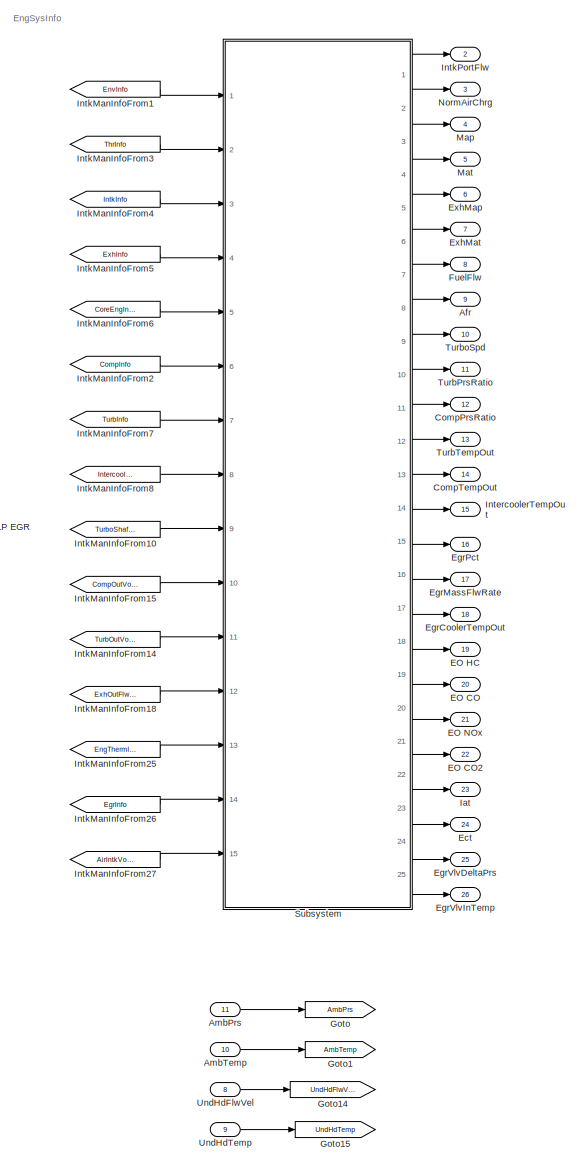
[diagram: root canvas - part 1/3, right side, full height]
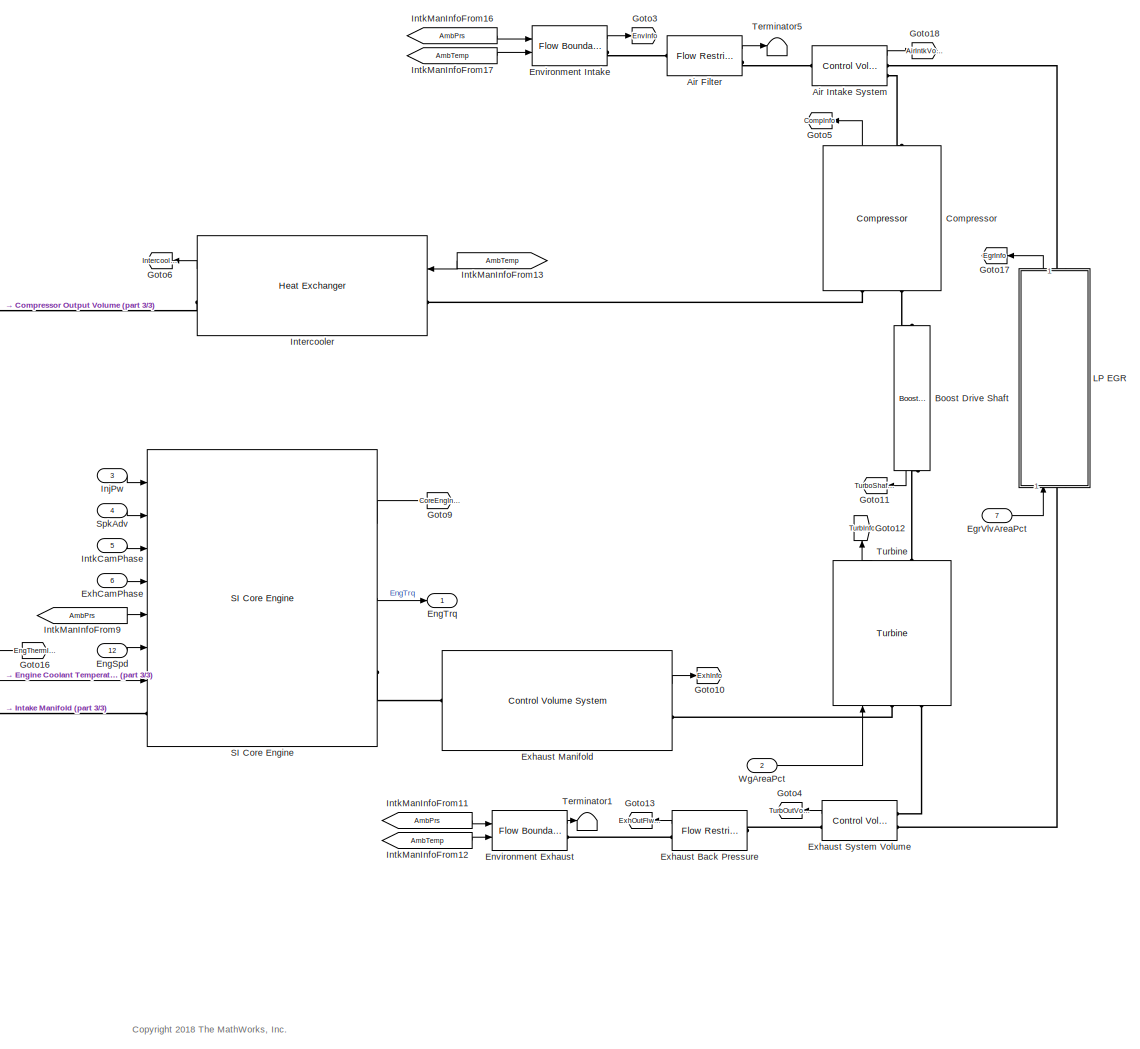
[diagram: root canvas - part 2/3, center side, full height]
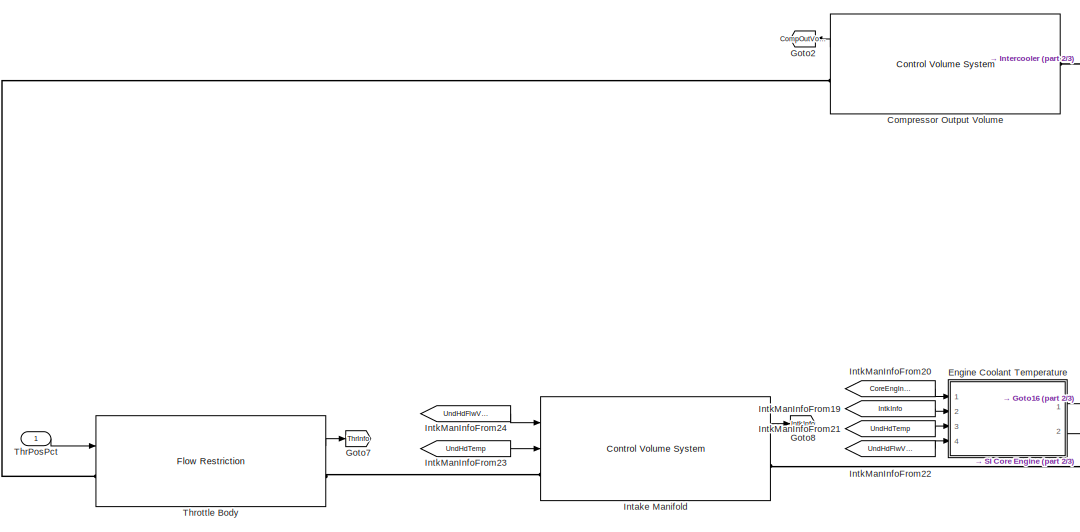
[diagram: root canvas - part 3/3, middle left region]
MODEL slx_4086c06a2117
KIND model
CONFIG AbsTol = auto
CONFIG EnableMultiTasking = on
CONFIG MaxStep = auto
CONFIG MinStep = auto
CONFIG RelTol = 1e-3
CONFIG SampleTimeConstraint = Unconstrained
CONFIG Solver = VariableStepAuto
CONFIG SolverName = VariableStepAuto
CONFIG StartTime = 0.0
CONFIG StopTime = inf
WORKSPACE source: MAT-file member
WORKSPACE AirFilterArea = 0.000962112750162
BLOCK [Outport] Afr
  IconDisplay = Port number
  Port = 9
BLOCK [Reference] Air Filter  REF=autolibfundflw/Flow Restriction
  Ports = [0, 1, 0, 0, 0, 1, 1]
  SourceBlock = autolibfundflw/Flow Restriction
  SourceProductBaseCode = PW
  SourceProductName = Powertrain Blockset
  SourceType = Flow Restriction
BLOCK [Reference] Air Intake System  REF=autolibfundflw/Control Volume System
  Ports = [0, 1, 0, 0, 0, 1, 2]
  SourceBlock = autolibfundflw/Control Volume System
  SourceProductBaseCode = PW
  SourceProductName = Powertrain Blockset
  SourceType = Control Volume System
BLOCK [Inport] AmbPrs
  IconDisplay = Port number
  Port = 11
BLOCK [Inport] AmbTemp
  IconDisplay = Port number
  Port = 10
BLOCK [Reference] Boost Drive Shaft  REF=autolibboost/Boost Drive Shaft
  Ports = [0, 1, 0, 0, 0, 1, 1]
  SourceBlock = autolibboost/Boost Drive Shaft
  SourceProductBaseCode = PW
  SourceProductName = Powertrain Blockset
  SourceType = Boost Drive Shaft
BLOCK [Outport] CompPrsRatio
  IconDisplay = Port number
  Port = 12
BLOCK [Outport] CompTempOut
  IconDisplay = Port number
  Port = 14
BLOCK [Reference] Compressor  REF=autolibboost/Compressor
  Ports = [0, 1, 0, 0, 0, 2, 1]
  SourceBlock = autolibboost/Compressor
  SourceProductBaseCode = PW
  SourceProductName = Powertrain Blockset
  SourceType = Compressor
BLOCK [Reference] Compressor Output Volume  REF=autolibfundflw/Control Volume System
  Ports = [0, 1, 0, 0, 0, 1, 1]
  SourceBlock = autolibfundflw/Control Volume System
  SourceProductBaseCode = PW
  SourceProductName = Powertrain Blockset
  SourceType = Control Volume System
BLOCK [Outport] EO CO
  IconDisplay = Port number
  Port = 20
BLOCK [Outport] EO CO2
  IconDisplay = Port number
  Port = 22
BLOCK [Outport] EO HC
  IconDisplay = Port number
  Port = 19
BLOCK [Outport] EO NOx
  IconDisplay = Port number
  Port = 21
BLOCK [Outport] Ect
  IconDisplay = Port number
  Port = 24
BLOCK [Outport] EgrCoolerTempOut
  IconDisplay = Port number
  Port = 18
BLOCK [Outport] EgrMassFlwRate
  IconDisplay = Port number
  Port = 17
BLOCK [Outport] EgrPct
  IconDisplay = Port number
  Port = 16
BLOCK [Inport] EgrVlvAreaPct
  IconDisplay = Port number
  Port = 7
BLOCK [Outport] EgrVlvDeltaPrs
  IconDisplay = Port number
  Port = 25
BLOCK [Outport] EgrVlvInTemp
  IconDisplay = Port number
  Port = 26
BLOCK [Inport] EngSpd
  IconDisplay = Port number
  Port = 12
BLOCK [Outport] EngTrq
  IconDisplay = Port number
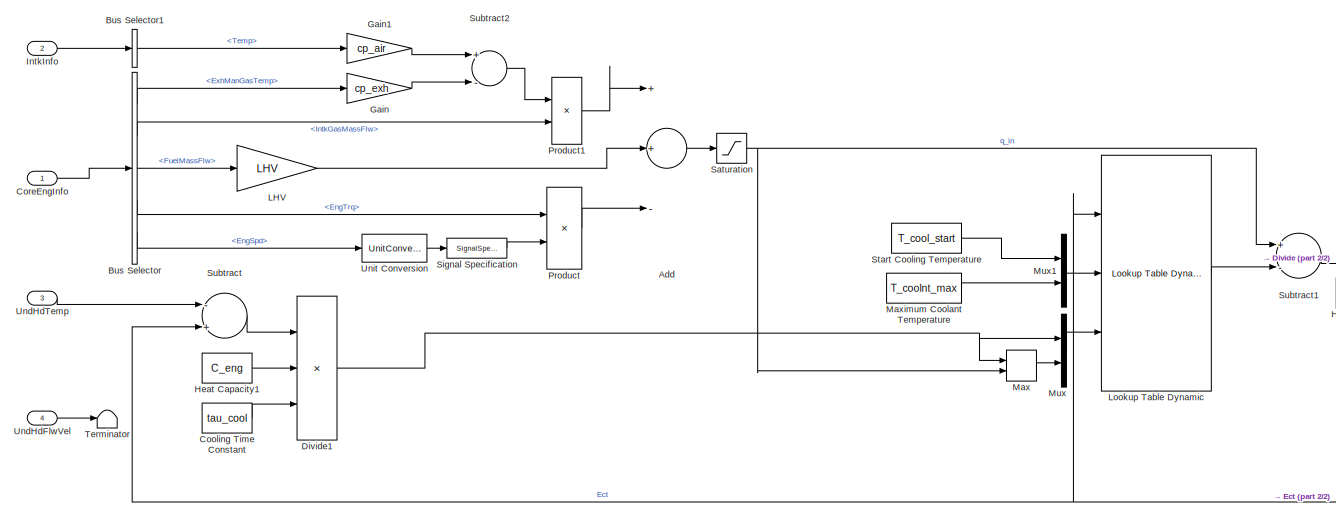
[diagram: Engine Coolant Temperature - part 1/2, center side, full height]
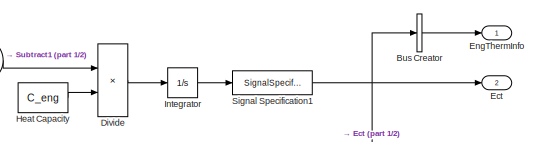
[diagram: Engine Coolant Temperature - part 2/2, middle right region]
BLOCK [SubSystem] Engine Coolant Temperature
  Ports = [4, 2]
  RequestExecContextInheritance = off
BLOCK [Sum] Engine Coolant Temperature/Add
  InputSameDT = off
  Inputs = ++-
  OutDataTypeStr = Inherit: Inherit via internal rule
  Ports = [3, 1]
  SaturateOnIntegerOverflow = off
BLOCK [BusCreator] Engine Coolant Temperature/Bus Creator
  DisplayOption = bar
  InheritFromInputs = on
  Inputs = 1
  Ports = [1, 1]
BLOCK [BusSelector] Engine Coolant Temperature/Bus Selector
  OutputAsBus = off
  OutputSignals = ExhManGasTemp,IntkGasMassFlw,FuelMassFlw,EngTrq,EngSpd
  Ports = [1, 5]
BLOCK [BusSelector] Engine Coolant Temperature/Bus Selector1
  OutputAsBus = off
  OutputSignals = Vol.Temp
  Ports = [1, 1]
BLOCK [Constant] Engine Coolant Temperature/Cooling Time Constant
  Value = tau_cool
BLOCK [Inport] Engine Coolant Temperature/CoreEngInfo
  IconDisplay = Port number
BLOCK [Product] Engine Coolant Temperature/Divide
  InputSameDT = off
  Inputs = */
  OutDataTypeStr = Inherit: Inherit via internal rule
  Ports = [2, 1]
  RndMeth = Floor
  SaturateOnIntegerOverflow = off
BLOCK [Product] Engine Coolant Temperature/Divide1
  InputSameDT = off
  Inputs = **/
  OutDataTypeStr = Inherit: Inherit via internal rule
  Ports = [3, 1]
  RndMeth = Floor
  SaturateOnIntegerOverflow = off
BLOCK [Outport] Engine Coolant Temperature/Ect
  IconDisplay = Port number
  Port = 2
  Unit = K
BLOCK [Outport] Engine Coolant Temperature/EngThermInfo
  IconDisplay = Port number
  Unit = K
BLOCK [Gain] Engine Coolant Temperature/Gain
  Gain = cp_exh
  OutDataTypeStr = Inherit: Inherit via internal rule
  ParamDataTypeStr = Inherit: Inherit via internal rule
  SaturateOnIntegerOverflow = off
BLOCK [Gain] Engine Coolant Temperature/Gain1
  Gain = cp_air
  OutDataTypeStr = Inherit: Inherit via internal rule
  ParamDataTypeStr = Inherit: Inherit via internal rule
  SaturateOnIntegerOverflow = off
BLOCK [Constant] Engine Coolant Temperature/Heat Capacity
  Value = C_eng
BLOCK [Constant] Engine Coolant Temperature/Heat Capacity1
  Value = C_eng
BLOCK [Integrator] Engine Coolant Temperature/Integrator
  InitialCondition = T_coolnt_init
  LimitOutput = on
  LowerSaturationLimit = 0
  Ports = [1, 1]
  UpperSaturationLimit = T_coolnt_max
  ZeroCross = off
BLOCK [Inport] Engine Coolant Temperature/IntkInfo
  IconDisplay = Port number
  Port = 2
BLOCK [Gain] Engine Coolant Temperature/LHV
  Gain = LHV
  OutDataTypeStr = Inherit: Inherit via internal rule
  ParamDataTypeStr = Inherit: Inherit via internal rule
  SaturateOnIntegerOverflow = off
BLOCK [Reference] Engine Coolant Temperature/Lookup Table Dynamic  REF=simulink/Lookup
Tables/Lookup
Table
Dynamic
  Ports = [3, 1]
  SourceBlock = simulink/Lookup\nTables/Lookup\nTable\nDynamic
  SourceProductBaseCode = SL
  SourceProductName = Simulink
  SourceType = Lookup Table Dynamic
BLOCK [MinMax] Engine Coolant Temperature/Max
  Function = max
  InputSameDT = off
  Inputs = 2
  Ports = [2, 1]
  SaturateOnIntegerOverflow = off
  ZeroCross = off
BLOCK [Constant] Engine Coolant Temperature/Maximum Coolant Temperature
  Value = T_coolnt_max
BLOCK [Mux] Engine Coolant Temperature/Mux
  DisplayOption = bar
  Inputs = 2
  Ports = [2, 1]
BLOCK [Mux] Engine Coolant Temperature/Mux1
  DisplayOption = bar
  Inputs = 2
  Ports = [2, 1]
BLOCK [Product] Engine Coolant Temperature/Product
  InputSameDT = off
  OutDataTypeStr = Inherit: Inherit via internal rule
  Ports = [2, 1]
  RndMeth = Floor
  SaturateOnIntegerOverflow = off
BLOCK [Product] Engine Coolant Temperature/Product1
  InputSameDT = off
  OutDataTypeStr = Inherit: Inherit via internal rule
  Ports = [2, 1]
  RndMeth = Floor
  SaturateOnIntegerOverflow = off
BLOCK [Saturate] Engine Coolant Temperature/Saturation
  InputPortMap = u0
  LowerLimit = 0
  Ports = [1, 1]
  UpperLimit = Inf
BLOCK [SignalSpecification] Engine Coolant Temperature/Signal Specification
  Unit = rad/s
BLOCK [SignalSpecification] Engine Coolant Temperature/Signal Specification1
  Unit = K
BLOCK [Constant] Engine Coolant Temperature/Start Cooling Temperature
  Value = T_cool_start
BLOCK [Sum] Engine Coolant Temperature/Subtract
  InputSameDT = off
  Inputs = -+
  OutDataTypeStr = Inherit: Inherit via internal rule
  Ports = [2, 1]
  SaturateOnIntegerOverflow = off
BLOCK [Sum] Engine Coolant Temperature/Subtract1
  InputSameDT = off
  Inputs = +-
  OutDataTypeStr = Inherit: Inherit via internal rule
  Ports = [2, 1]
  SaturateOnIntegerOverflow = off
BLOCK [Sum] Engine Coolant Temperature/Subtract2
  InputSameDT = off
  Inputs = +-
  OutDataTypeStr = Inherit: Inherit via internal rule
  Ports = [2, 1]
  SaturateOnIntegerOverflow = off
BLOCK [Terminator] Engine Coolant Temperature/Terminator
BLOCK [Inport] Engine Coolant Temperature/UndHdFlwVel
  IconDisplay = Port number
  Port = 4
BLOCK [Inport] Engine Coolant Temperature/UndHdTemp
  IconDisplay = Port number
  Port = 3
BLOCK [UnitConversion] Engine Coolant Temperature/Unit Conversion
BLOCK [Reference] Environment Exhaust  REF=autolibfundflw/Flow Boundary
  Ports = [2, 1, 0, 0, 0, 0, 1]
  SourceBlock = autolibfundflw/Flow Boundary
  SourceProductBaseCode = PW
  SourceProductName = Powertrain Blockset
  SourceType = Flow Boundary
BLOCK [Reference] Environment Intake  REF=autolibfundflw/Flow Boundary
  Ports = [2, 1, 0, 0, 0, 0, 1]
  SourceBlock = autolibfundflw/Flow Boundary
  SourceProductBaseCode = PW
  SourceProductName = Powertrain Blockset
  SourceType = Flow Boundary
BLOCK [Inport] ExhCamPhase
  IconDisplay = Port number
  Port = 6
BLOCK [Outport] ExhMap
  IconDisplay = Port number
  Port = 6
BLOCK [Outport] ExhMat
  IconDisplay = Port number
  Port = 7
BLOCK [Reference] Exhaust Back Pressure  REF=autolibfundflw/Flow Restriction
  Ports = [0, 1, 0, 0, 0, 1, 1]
  SourceBlock = autolibfundflw/Flow Restriction
  SourceProductBaseCode = PW
  SourceProductName = Powertrain Blockset
  SourceType = Flow Restriction
BLOCK [Reference] Exhaust Manifold  REF=autolibfundflw/Control Volume System
  Ports = [0, 1, 0, 0, 0, 1, 1]
  SourceBlock = autolibfundflw/Control Volume System
  SourceProductBaseCode = PW
  SourceProductName = Powertrain Blockset
  SourceType = Control Volume System
BLOCK [Reference] Exhaust System Volume  REF=autolibfundflw/Control Volume System
  Ports = [0, 1, 0, 0, 0, 2, 1]
  SourceBlock = autolibfundflw/Control Volume System
  SourceProductBaseCode = PW
  SourceProductName = Powertrain Blockset
  SourceType = Control Volume System
BLOCK [Outport] FuelFlw
  IconDisplay = Port number
  Port = 8
BLOCK [Goto] Goto
  GotoTag = AmbPrs
BLOCK [Goto] Goto1
  GotoTag = AmbTemp
BLOCK [Goto] Goto10
  GotoTag = ExhInfo
BLOCK [Goto] Goto11
  GotoTag = TurboShaftInfo
BLOCK [Goto] Goto12
  GotoTag = TurbInfo
BLOCK [Goto] Goto13
  GotoTag = ExhOutFlwInfo
BLOCK [Goto] Goto14
  GotoTag = UndHdFlwVel
BLOCK [Goto] Goto15
  GotoTag = UndHdTemp
BLOCK [Goto] Goto16
  GotoTag = EngThermInfo
BLOCK [Goto] Goto17
  GotoTag = EgrInfo
BLOCK [Goto] Goto18
  GotoTag = AirIntkVolInfo
BLOCK [Goto] Goto2
  GotoTag = CompOutVolInfo
BLOCK [Goto] Goto3
  GotoTag = EnvInfo
BLOCK [Goto] Goto4
  GotoTag = TurbOutVolInfo
BLOCK [Goto] Goto5
  GotoTag = CompInfo
BLOCK [Goto] Goto6
  GotoTag = IntercoolerInfo
BLOCK [Goto] Goto7
  GotoTag = ThrInfo
BLOCK [Goto] Goto8
  GotoTag = IntkInfo
BLOCK [Goto] Goto9
  GotoTag = CoreEngInfo
BLOCK [Outport] Iat
  IconDisplay = Port number
  Port = 23
BLOCK [Inport] InjPw
  IconDisplay = Port number
  Port = 3
BLOCK [Reference] Intake Manifold  REF=autolibfundflw/Control Volume System
  Ports = [2, 1, 0, 0, 0, 1, 1]
  SourceBlock = autolibfundflw/Control Volume System
  SourceProductBaseCode = PW
  SourceProductName = Powertrain Blockset
  SourceType = Control Volume System
BLOCK [Reference] Intercooler  REF=autolibfundflw/Heat Exchanger
  Ports = [1, 1, 0, 0, 0, 1, 1]
  SourceBlock = autolibfundflw/Heat Exchanger
  SourceProductBaseCode = PW
  SourceProductName = Powertrain Blockset
  SourceType = Heat Exchanger
BLOCK [Outport] IntercoolerTempOut
  IconDisplay = Port number
  Port = 15
BLOCK [Inport] IntkCamPhase
  IconDisplay = Port number
  Port = 5
BLOCK [From] IntkManInfoFrom1
  GotoTag = EnvInfo
BLOCK [From] IntkManInfoFrom10
  GotoTag = TurboShaftInfo
BLOCK [From] IntkManInfoFrom11
  GotoTag = AmbPrs
BLOCK [From] IntkManInfoFrom12
  GotoTag = AmbTemp
BLOCK [From] IntkManInfoFrom13
  GotoTag = AmbTemp
BLOCK [From] IntkManInfoFrom14
  GotoTag = TurbOutVolInfo
BLOCK [From] IntkManInfoFrom15
  GotoTag = CompOutVolInfo
BLOCK [From] IntkManInfoFrom16
  GotoTag = AmbPrs
BLOCK [From] IntkManInfoFrom17
  GotoTag = AmbTemp
BLOCK [From] IntkManInfoFrom18
  GotoTag = ExhOutFlwInfo
BLOCK [From] IntkManInfoFrom19
  GotoTag = IntkInfo
BLOCK [From] IntkManInfoFrom2
  GotoTag = CompInfo
BLOCK [From] IntkManInfoFrom20
  GotoTag = CoreEngInfo
BLOCK [From] IntkManInfoFrom21
  GotoTag = UndHdTemp
BLOCK [From] IntkManInfoFrom22
  GotoTag = UndHdFlwVel
BLOCK [From] IntkManInfoFrom23
  GotoTag = UndHdTemp
BLOCK [From] IntkManInfoFrom24
  GotoTag = UndHdFlwVel
BLOCK [From] IntkManInfoFrom25
  GotoTag = EngThermInfo
BLOCK [From] IntkManInfoFrom26
  GotoTag = EgrInfo
BLOCK [From] IntkManInfoFrom27
  GotoTag = AirIntkVolInfo
BLOCK [From] IntkManInfoFrom3
  GotoTag = ThrInfo
BLOCK [From] IntkManInfoFrom4
  GotoTag = IntkInfo
BLOCK [From] IntkManInfoFrom5
  GotoTag = ExhInfo
BLOCK [From] IntkManInfoFrom6
  GotoTag = CoreEngInfo
BLOCK [From] IntkManInfoFrom7
  GotoTag = TurbInfo
BLOCK [From] IntkManInfoFrom8
  GotoTag = IntercoolerInfo
BLOCK [From] IntkManInfoFrom9
  GotoTag = AmbPrs
BLOCK [Outport] IntkPortFlw
  IconDisplay = Port number
  Port = 2
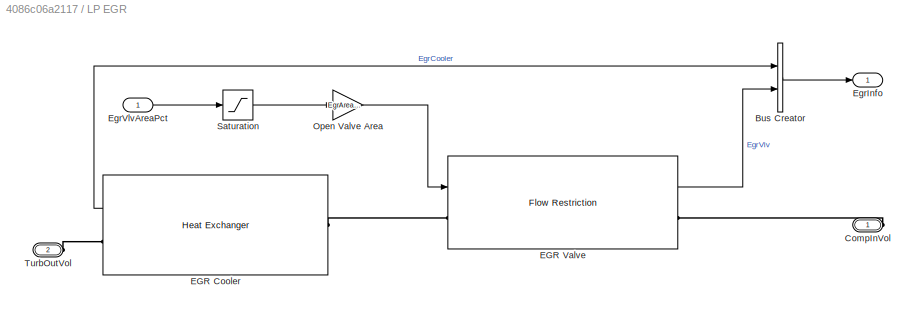
BLOCK [SubSystem] LP EGR
  Ports = [1, 1, 0, 0, 0, 1, 1]
  RequestExecContextInheritance = off
BLOCK [BusCreator] LP EGR/Bus Creator
  DisplayOption = bar
  InheritFromInputs = on
  Inputs = 2
  Ports = [2, 1]
BLOCK [PMIOPort] LP EGR/CompInVol
  Side = Right
BLOCK [Reference] LP EGR/EGR Cooler  REF=autolibfundflw/Heat Exchanger
  Ports = [0, 1, 0, 0, 0, 1, 1]
  SourceBlock = autolibfundflw/Heat Exchanger
  SourceProductBaseCode = PW
  SourceProductName = Powertrain Blockset
  SourceType = Heat Exchanger
BLOCK [Reference] LP EGR/EGR Valve  REF=autolibfundflw/Flow Restriction
  Ports = [1, 1, 0, 0, 0, 1, 1]
  SourceBlock = autolibfundflw/Flow Restriction
  SourceProductBaseCode = PW
  SourceProductName = Powertrain Blockset
  SourceType = Flow Restriction
BLOCK [Outport] LP EGR/EgrInfo
  IconDisplay = Port number
BLOCK [Inport] LP EGR/EgrVlvAreaPct
  IconDisplay = Port number
BLOCK [Gain] LP EGR/Open Valve Area
  Gain = EgrArea/100
  OutDataTypeStr = Inherit: Inherit via internal rule
  ParamDataTypeStr = Inherit: Inherit via internal rule
  SaturateOnIntegerOverflow = off
BLOCK [Saturate] LP EGR/Saturation
  InputPortMap = u0
  LowerLimit = 0
  Ports = [1, 1]
  UpperLimit = 100
BLOCK [PMIOPort] LP EGR/TurbOutVol
  Port = 2
  Side = Left
BLOCK [Outport] Map
  IconDisplay = Port number
  Port = 4
BLOCK [Outport] Mat
  IconDisplay = Port number
  Port = 5
BLOCK [Outport] NormAirChrg
  IconDisplay = Port number
  Port = 3
BLOCK [Reference] SI Core Engine  REF=autolibcoreeng/SI Core Engine
  Ports = [7, 2, 0, 0, 0, 1, 1]
  SourceBlock = autolibcoreeng/SI Core Engine
  SourceProductBaseCode = PW
  SourceProductName = Powertrain Blockset
  SourceType = SI Core Engine
BLOCK [Inport] SpkAdv
  IconDisplay = Port number
  Port = 4
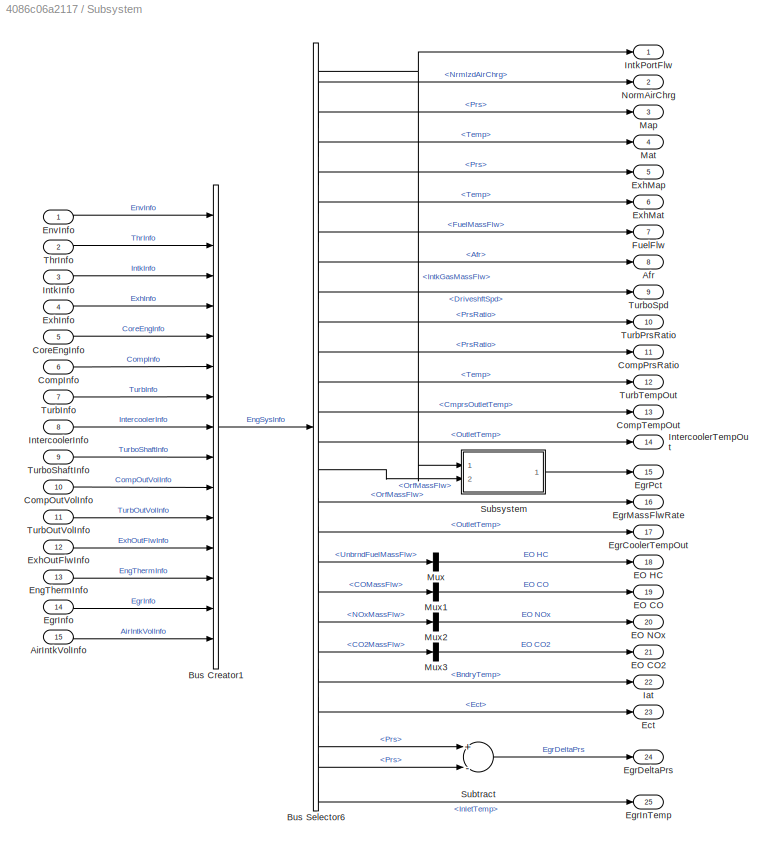
BLOCK [SubSystem] Subsystem
  Ports = [15, 25]
  RequestExecContextInheritance = off
BLOCK [Outport] Subsystem/Afr
  IconDisplay = Port number
  Port = 8
  Unit = 1
BLOCK [Inport] Subsystem/AirIntkVolInfo
  IconDisplay = Port number
  Port = 15
BLOCK [BusCreator] Subsystem/Bus Creator1
  DisplayOption = bar
  InheritFromInputs = on
  Inputs = 15
  Ports = [15, 1]
BLOCK [BusSelector] Subsystem/Bus Selector6
  OutputAsBus = off
  OutputSignals = CoreEngInfo.IntkGasMassFlw,CoreEngInfo.NrmlzdAirChrg,IntkInfo.Vol.Prs,IntkInfo.Vol.Temp,ExhInfo.Vol.Prs,ExhInfo.Vol.Temp,CoreEngInfo.FuelMassFlw,CoreEngInfo.Afr,TurboShaftInfo.DriveshftSpd,TurbInfo.PrsRatio,CompInfo.PrsRatio,TurbOutVolInfo.Vol.Temp,CompInfo.CmprsOutletTemp,IntercoolerInfo.OutletTemp,EgrInfo.EgrVlv.Flw.OrfMassFlw,EgrInfo.EgrVlv.Flw.OrfMassFlw,EgrInfo.EgrCooler.OutletTemp,ExhOutFlwI...<+252ch>
  Ports = [1, 26]
BLOCK [Inport] Subsystem/CompInfo
  IconDisplay = Port number
  Port = 6
BLOCK [Inport] Subsystem/CompOutVolInfo
  IconDisplay = Port number
  Port = 10
BLOCK [Outport] Subsystem/CompPrsRatio
  IconDisplay = Port number
  Port = 11
BLOCK [Outport] Subsystem/CompTempOut
  IconDisplay = Port number
  Port = 13
BLOCK [Inport] Subsystem/CoreEngInfo
  IconDisplay = Port number
  Port = 5
BLOCK [Outport] Subsystem/EO CO
  IconDisplay = Port number
  Port = 19
BLOCK [Outport] Subsystem/EO CO2
  IconDisplay = Port number
  Port = 21
BLOCK [Outport] Subsystem/EO HC
  IconDisplay = Port number
  Port = 18
BLOCK [Outport] Subsystem/EO NOx
  IconDisplay = Port number
  Port = 20
BLOCK [Outport] Subsystem/Ect
  IconDisplay = Port number
  Port = 23
BLOCK [Outport] Subsystem/EgrCoolerTempOut
  IconDisplay = Port number
  Port = 17
BLOCK [Outport] Subsystem/EgrDeltaPrs
  IconDisplay = Port number
  Port = 24
  Unit = Pa
BLOCK [Outport] Subsystem/EgrInTemp
  IconDisplay = Port number
  Port = 25
  Unit = K
BLOCK [Inport] Subsystem/EgrInfo
  IconDisplay = Port number
  Port = 14
BLOCK [Outport] Subsystem/EgrMassFlwRate
  IconDisplay = Port number
  Port = 16
BLOCK [Outport] Subsystem/EgrPct
  IconDisplay = Port number
  Port = 15
  Unit = %
BLOCK [Inport] Subsystem/EngThermInfo
  IconDisplay = Port number
  Port = 13
BLOCK [Inport] Subsystem/EnvInfo
  IconDisplay = Port number
BLOCK [Inport] Subsystem/ExhInfo
  IconDisplay = Port number
  Port = 4
BLOCK [Outport] Subsystem/ExhMap
  IconDisplay = Port number
  Port = 5
BLOCK [Outport] Subsystem/ExhMat
  IconDisplay = Port number
  Port = 6
BLOCK [Inport] Subsystem/ExhOutFlwInfo
  IconDisplay = Port number
  Port = 12
BLOCK [Outport] Subsystem/FuelFlw
  IconDisplay = Port number
  Port = 7
BLOCK [Outport] Subsystem/Iat
  IconDisplay = Port number
  Port = 22
BLOCK [Inport] Subsystem/IntercoolerInfo
  IconDisplay = Port number
  Port = 8
BLOCK [Outport] Subsystem/IntercoolerTempOut
  IconDisplay = Port number
  Port = 14
BLOCK [Inport] Subsystem/IntkInfo
  IconDisplay = Port number
  Port = 3
BLOCK [Outport] Subsystem/IntkPortFlw
  IconDisplay = Port number
BLOCK [Outport] Subsystem/Map
  IconDisplay = Port number
  Port = 3
BLOCK [Outport] Subsystem/Mat
  IconDisplay = Port number
  Port = 4
BLOCK [Mux] Subsystem/Mux
  DisplayOption = bar
  Inputs = 1
  Ports = [1, 1]
BLOCK [Mux] Subsystem/Mux1
  DisplayOption = bar
  Inputs = 1
  Ports = [1, 1]
BLOCK [Mux] Subsystem/Mux2
  DisplayOption = bar
  Inputs = 1
  Ports = [1, 1]
BLOCK [Mux] Subsystem/Mux3
  DisplayOption = bar
  Inputs = 1
  Ports = [1, 1]
BLOCK [Outport] Subsystem/NormAirChrg
  IconDisplay = Port number
  Port = 2
  Unit = 1
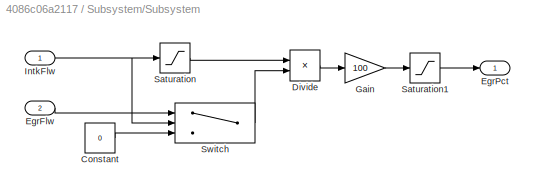
BLOCK [SubSystem] Subsystem/Subsystem
  Ports = [2, 1]
  RequestExecContextInheritance = off
BLOCK [Constant] Subsystem/Subsystem/Constant
  Value = 0
BLOCK [Product] Subsystem/Subsystem/Divide
  InputSameDT = off
  Inputs = /*
  OutDataTypeStr = Inherit: Inherit via internal rule
  Ports = [2, 1]
  RndMeth = Floor
  SaturateOnIntegerOverflow = off
BLOCK [Inport] Subsystem/Subsystem/EgrFlw
  IconDisplay = Port number
  Port = 2
BLOCK [Outport] Subsystem/Subsystem/EgrPct
  IconDisplay = Port number
BLOCK [Gain] Subsystem/Subsystem/Gain
  Gain = 100
  OutDataTypeStr = Inherit: Inherit via internal rule
  ParamDataTypeStr = Inherit: Inherit via internal rule
  SaturateOnIntegerOverflow = off
BLOCK [Inport] Subsystem/Subsystem/IntkFlw
  IconDisplay = Port number
BLOCK [Saturate] Subsystem/Subsystem/Saturation
  InputPortMap = u0
  LowerLimit = 1e-6
  Ports = [1, 1]
  UpperLimit = 1e6
  ZeroCross = off
BLOCK [Saturate] Subsystem/Subsystem/Saturation1
  InputPortMap = u0
  LowerLimit = 0
  Ports = [1, 1]
  UpperLimit = 100
  ZeroCross = off
BLOCK [Switch] Subsystem/Subsystem/Switch
  Criteria = u2 > Threshold
  InputSameDT = off
  SaturateOnIntegerOverflow = off
  Threshold = 1e-6
  ZeroCross = off
BLOCK [Sum] Subsystem/Subtract
  InputSameDT = off
  Inputs = +-
  OutDataTypeStr = Inherit: Inherit via internal rule
  Ports = [2, 1]
  SaturateOnIntegerOverflow = off
BLOCK [Inport] Subsystem/ThrInfo
  IconDisplay = Port number
  Port = 2
BLOCK [Inport] Subsystem/TurbInfo
  IconDisplay = Port number
  Port = 7
BLOCK [Inport] Subsystem/TurbOutVolInfo
  IconDisplay = Port number
  Port = 11
BLOCK [Outport] Subsystem/TurbPrsRatio
  IconDisplay = Port number
  Port = 10
BLOCK [Outport] Subsystem/TurbTempOut
  IconDisplay = Port number
  Port = 12
BLOCK [Inport] Subsystem/TurboShaftInfo
  IconDisplay = Port number
  Port = 9
BLOCK [Outport] Subsystem/TurboSpd
  IconDisplay = Port number
  Port = 9
BLOCK [Terminator] Terminator1
BLOCK [Terminator] Terminator5
BLOCK [Inport] ThrPosPct
  IconDisplay = Port number
BLOCK [Reference] Throttle Body  REF=autolibfundflw/Flow Restriction
  Ports = [1, 1, 0, 0, 0, 1, 1]
  SourceBlock = autolibfundflw/Flow Restriction
  SourceProductBaseCode = PW
  SourceProductName = Powertrain Blockset
  SourceType = Flow Restriction
BLOCK [Outport] TurbPrsRatio
  IconDisplay = Port number
  Port = 11
BLOCK [Outport] TurbTempOut
  IconDisplay = Port number
  Port = 13
BLOCK [Reference] Turbine  REF=autolibboost/Turbine
  Ports = [1, 1, 0, 0, 0, 2, 1]
  SourceBlock = autolibboost/Turbine
  SourceProductBaseCode = PW
  SourceProductName = Powertrain Blockset
  SourceType = Turbine
BLOCK [Outport] TurboSpd
  IconDisplay = Port number
  Port = 10
BLOCK [Inport] UndHdFlwVel
  IconDisplay = Port number
  Port = 8
BLOCK [Inport] UndHdTemp
  IconDisplay = Port number
  Port = 9
BLOCK [Inport] WgAreaPct
  IconDisplay = Port number
  Port = 2
ANNOTATION (root): <copyright redacted>
ANNOTATION (root): EngSysInfo
LINE Air Filter:1 -> Terminator5:1
LINE Air Intake System:1 -> Goto18:1
LINE AmbPrs:1 -> Goto:1
LINE AmbTemp:1 -> Goto1:1
LINE Boost Drive Shaft:1 -> Goto11:1
LINE Compressor Output Volume:1 -> Goto2:1
LINE Compressor:1 -> Goto5:1
LINE EgrVlvAreaPct:1 -> LP EGR:1
LINE EngSpd:1 -> SI Core Engine:6
LINE Engine Coolant Temperature/Add:1 -> Engine Coolant Temperature/Saturation:1
LINE Engine Coolant Temperature/Bus Creator:1 -> Engine Coolant Temperature/EngThermInfo:1
LINE Engine Coolant Temperature/Bus Selector1:1 -> Engine Coolant Temperature/Gain1:1
LINE Engine Coolant Temperature/Bus Selector:1 -> Engine Coolant Temperature/Gain:1
LINE Engine Coolant Temperature/Bus Selector:2 -> Engine Coolant Temperature/Product1:2
LINE Engine Coolant Temperature/Bus Selector:3 -> Engine Coolant Temperature/LHV:1
LINE Engine Coolant Temperature/Bus Selector:4 -> Engine Coolant Temperature/Product:1
LINE Engine Coolant Temperature/Bus Selector:5 -> Engine Coolant Temperature/Unit Conversion:1
LINE Engine Coolant Temperature/Cooling Time Constant:1 -> Engine Coolant Temperature/Divide1:3
LINE Engine Coolant Temperature/CoreEngInfo:1 -> Engine Coolant Temperature/Bus Selector:1
NET Engine Coolant Temperature/Divide1:1 -> Engine Coolant Temperature/Max:1, Engine Coolant Temperature/Mux:1
LINE Engine Coolant Temperature/Divide:1 -> Engine Coolant Temperature/Integrator:1
LINE Engine Coolant Temperature/Gain1:1 -> Engine Coolant Temperature/Subtract2:1
LINE Engine Coolant Temperature/Gain:1 -> Engine Coolant Temperature/Subtract2:2
LINE Engine Coolant Temperature/Heat Capacity1:1 -> Engine Coolant Temperature/Divide1:2
LINE Engine Coolant Temperature/Heat Capacity:1 -> Engine Coolant Temperature/Divide:2
LINE Engine Coolant Temperature/Integrator:1 -> Engine Coolant Temperature/Signal Specification1:1
LINE Engine Coolant Temperature/IntkInfo:1 -> Engine Coolant Temperature/Bus Selector1:1
LINE Engine Coolant Temperature/LHV:1 -> Engine Coolant Temperature/Add:2
LINE Engine Coolant Temperature/Lookup Table Dynamic:1 -> Engine Coolant Temperature/Subtract1:2
LINE Engine Coolant Temperature/Max:1 -> Engine Coolant Temperature/Mux:2
LINE Engine Coolant Temperature/Maximum Coolant Temperature:1 -> Engine Coolant Temperature/Mux1:2
LINE Engine Coolant Temperature/Mux1:1 -> Engine Coolant Temperature/Lookup Table Dynamic:2
LINE Engine Coolant Temperature/Mux:1 -> Engine Coolant Temperature/Lookup Table Dynamic:3
LINE Engine Coolant Temperature/Product1:1 -> Engine Coolant Temperature/Add:1
LINE Engine Coolant Temperature/Product:1 -> Engine Coolant Temperature/Add:3
NET Engine Coolant Temperature/Saturation:1 -> Engine Coolant Temperature/Max:2, Engine Coolant Temperature/Subtract1:1
NET Engine Coolant Temperature/Signal Specification1:1 -> Engine Coolant Temperature/Bus Creator:1, Engine Coolant Temperature/Ect:1, Engine Coolant Temperature/Lookup Table Dynamic:1, Engine Coolant Temperature/Subtract:2
LINE Engine Coolant Temperature/Signal Specification:1 -> Engine Coolant Temperature/Product:2
LINE Engine Coolant Temperature/Start Cooling Temperature:1 -> Engine Coolant Temperature/Mux1:1
LINE Engine Coolant Temperature/Subtract1:1 -> Engine Coolant Temperature/Divide:1
LINE Engine Coolant Temperature/Subtract2:1 -> Engine Coolant Temperature/Product1:1
LINE Engine Coolant Temperature/Subtract:1 -> Engine Coolant Temperature/Divide1:1
LINE Engine Coolant Temperature/UndHdFlwVel:1 -> Engine Coolant Temperature/Terminator:1
LINE Engine Coolant Temperature/UndHdTemp:1 -> Engine Coolant Temperature/Subtract:1
LINE Engine Coolant Temperature/Unit Conversion:1 -> Engine Coolant Temperature/Signal Specification:1
LINE Engine Coolant Temperature:1 -> Goto16:1
LINE Engine Coolant Temperature:2 -> SI Core Engine:7
LINE Environment Exhaust:1 -> Terminator1:1
LINE Environment Intake:1 -> Goto3:1
LINE ExhCamPhase:1 -> SI Core Engine:4
LINE Exhaust Back Pressure:1 -> Goto13:1
LINE Exhaust Manifold:1 -> Goto10:1
LINE Exhaust System Volume:1 -> Goto4:1
LINE InjPw:1 -> SI Core Engine:1
LINE Intake Manifold:1 -> Goto8:1
LINE Intercooler:1 -> Goto6:1
LINE IntkCamPhase:1 -> SI Core Engine:3
LINE IntkManInfoFrom10:1 -> Subsystem:9
LINE IntkManInfoFrom11:1 -> Environment Exhaust:1
LINE IntkManInfoFrom12:1 -> Environment Exhaust:2
LINE IntkManInfoFrom13:1 -> Intercooler:1
LINE IntkManInfoFrom14:1 -> Subsystem:11
LINE IntkManInfoFrom15:1 -> Subsystem:10
LINE IntkManInfoFrom16:1 -> Environment Intake:1
LINE IntkManInfoFrom17:1 -> Environment Intake:2
LINE IntkManInfoFrom18:1 -> Subsystem:12
LINE IntkManInfoFrom19:1 -> Engine Coolant Temperature:2
LINE IntkManInfoFrom1:1 -> Subsystem:1
LINE IntkManInfoFrom20:1 -> Engine Coolant Temperature:1
LINE IntkManInfoFrom21:1 -> Engine Coolant Temperature:3
LINE IntkManInfoFrom22:1 -> Engine Coolant Temperature:4
LINE IntkManInfoFrom23:1 -> Intake Manifold:2
LINE IntkManInfoFrom24:1 -> Intake Manifold:1
LINE IntkManInfoFrom25:1 -> Subsystem:13
LINE IntkManInfoFrom26:1 -> Subsystem:14
LINE IntkManInfoFrom27:1 -> Subsystem:15
LINE IntkManInfoFrom2:1 -> Subsystem:6
LINE IntkManInfoFrom3:1 -> Subsystem:2
LINE IntkManInfoFrom4:1 -> Subsystem:3
LINE IntkManInfoFrom5:1 -> Subsystem:4
LINE IntkManInfoFrom6:1 -> Subsystem:5
LINE IntkManInfoFrom7:1 -> Subsystem:7
LINE IntkManInfoFrom8:1 -> Subsystem:8
LINE IntkManInfoFrom9:1 -> SI Core Engine:5
LINE LP EGR/Bus Creator:1 -> LP EGR/EgrInfo:1
LINE LP EGR/EGR Cooler:1 -> LP EGR/Bus Creator:1
LINE LP EGR/EGR Valve:1 -> LP EGR/Bus Creator:2
LINE LP EGR/EgrVlvAreaPct:1 -> LP EGR/Saturation:1
LINE LP EGR/Open Valve Area:1 -> LP EGR/EGR Valve:1
LINE LP EGR/Saturation:1 -> LP EGR/Open Valve Area:1
LINE LP EGR:1 -> Goto17:1
LINE SI Core Engine:1 -> Goto9:1
LINE SI Core Engine:2 -> EngTrq:1
LINE SpkAdv:1 -> SI Core Engine:2
LINE Subsystem/AirIntkVolInfo:1 -> Subsystem/Bus Creator1:15
LINE Subsystem/Bus Creator1:1 -> Subsystem/Bus Selector6:1
NET Subsystem/Bus Selector6:1 -> Subsystem/IntkPortFlw:1, Subsystem/Subsystem:1
LINE Subsystem/Bus Selector6:10 -> Subsystem/TurbPrsRatio:1
LINE Subsystem/Bus Selector6:11 -> Subsystem/CompPrsRatio:1
LINE Subsystem/Bus Selector6:12 -> Subsystem/TurbTempOut:1
LINE Subsystem/Bus Selector6:13 -> Subsystem/CompTempOut:1
LINE Subsystem/Bus Selector6:14 -> Subsystem/IntercoolerTempOut:1
LINE Subsystem/Bus Selector6:15 -> Subsystem/Subsystem:2
LINE Subsystem/Bus Selector6:16 -> Subsystem/EgrMassFlwRate:1
LINE Subsystem/Bus Selector6:17 -> Subsystem/EgrCoolerTempOut:1
LINE Subsystem/Bus Selector6:18 -> Subsystem/Mux:1
LINE Subsystem/Bus Selector6:19 -> Subsystem/Mux1:1
LINE Subsystem/Bus Selector6:2 -> Subsystem/NormAirChrg:1
LINE Subsystem/Bus Selector6:20 -> Subsystem/Mux2:1
LINE Subsystem/Bus Selector6:21 -> Subsystem/Mux3:1
LINE Subsystem/Bus Selector6:22 -> Subsystem/Iat:1
LINE Subsystem/Bus Selector6:23 -> Subsystem/Ect:1
LINE Subsystem/Bus Selector6:24 -> Subsystem/Subtract:1
LINE Subsystem/Bus Selector6:25 -> Subsystem/Subtract:2
LINE Subsystem/Bus Selector6:26 -> Subsystem/EgrInTemp:1
LINE Subsystem/Bus Selector6:3 -> Subsystem/Map:1
LINE Subsystem/Bus Selector6:4 -> Subsystem/Mat:1
LINE Subsystem/Bus Selector6:5 -> Subsystem/ExhMap:1
LINE Subsystem/Bus Selector6:6 -> Subsystem/ExhMat:1
LINE Subsystem/Bus Selector6:7 -> Subsystem/FuelFlw:1
LINE Subsystem/Bus Selector6:8 -> Subsystem/Afr:1
LINE Subsystem/Bus Selector6:9 -> Subsystem/TurboSpd:1
LINE Subsystem/CompInfo:1 -> Subsystem/Bus Creator1:6
LINE Subsystem/CompOutVolInfo:1 -> Subsystem/Bus Creator1:10
LINE Subsystem/CoreEngInfo:1 -> Subsystem/Bus Creator1:5
LINE Subsystem/EgrInfo:1 -> Subsystem/Bus Creator1:14
LINE Subsystem/EngThermInfo:1 -> Subsystem/Bus Creator1:13
LINE Subsystem/EnvInfo:1 -> Subsystem/Bus Creator1:1
LINE Subsystem/ExhInfo:1 -> Subsystem/Bus Creator1:4
LINE Subsystem/ExhOutFlwInfo:1 -> Subsystem/Bus Creator1:12
LINE Subsystem/IntercoolerInfo:1 -> Subsystem/Bus Creator1:8
LINE Subsystem/IntkInfo:1 -> Subsystem/Bus Creator1:3
LINE Subsystem/Mux1:1 -> Subsystem/EO CO:1
LINE Subsystem/Mux2:1 -> Subsystem/EO NOx:1
LINE Subsystem/Mux3:1 -> Subsystem/EO CO2:1
LINE Subsystem/Mux:1 -> Subsystem/EO HC:1
LINE Subsystem/Subsystem/Constant:1 -> Subsystem/Subsystem/Switch:3
LINE Subsystem/Subsystem/Divide:1 -> Subsystem/Subsystem/Gain:1
LINE Subsystem/Subsystem/EgrFlw:1 -> Subsystem/Subsystem/Switch:1
LINE Subsystem/Subsystem/Gain:1 -> Subsystem/Subsystem/Saturation1:1
NET Subsystem/Subsystem/IntkFlw:1 -> Subsystem/Subsystem/Saturation:1, Subsystem/Subsystem/Switch:2
LINE Subsystem/Subsystem/Saturation1:1 -> Subsystem/Subsystem/EgrPct:1
LINE Subsystem/Subsystem/Saturation:1 -> Subsystem/Subsystem/Divide:1
LINE Subsystem/Subsystem/Switch:1 -> Subsystem/Subsystem/Divide:2
LINE Subsystem/Subsystem:1 -> Subsystem/EgrPct:1
LINE Subsystem/Subtract:1 -> Subsystem/EgrDeltaPrs:1
LINE Subsystem/ThrInfo:1 -> Subsystem/Bus Creator1:2
LINE Subsystem/TurbInfo:1 -> Subsystem/Bus Creator1:7
LINE Subsystem/TurbOutVolInfo:1 -> Subsystem/Bus Creator1:11
LINE Subsystem/TurboShaftInfo:1 -> Subsystem/Bus Creator1:9
LINE Subsystem:1 -> IntkPortFlw:1
LINE Subsystem:10 -> TurbPrsRatio:1
LINE Subsystem:11 -> CompPrsRatio:1
LINE Subsystem:12 -> TurbTempOut:1
LINE Subsystem:13 -> CompTempOut:1
LINE Subsystem:14 -> IntercoolerTempOut:1
LINE Subsystem:15 -> EgrPct:1
LINE Subsystem:16 -> EgrMassFlwRate:1
LINE Subsystem:17 -> EgrCoolerTempOut:1
LINE Subsystem:18 -> EO HC:1
LINE Subsystem:19 -> EO CO:1
LINE Subsystem:2 -> NormAirChrg:1
LINE Subsystem:20 -> EO NOx:1
LINE Subsystem:21 -> EO CO2:1
LINE Subsystem:22 -> Iat:1
LINE Subsystem:23 -> Ect:1
LINE Subsystem:24 -> EgrVlvDeltaPrs:1
LINE Subsystem:25 -> EgrVlvInTemp:1
LINE Subsystem:3 -> Map:1
LINE Subsystem:4 -> Mat:1
LINE Subsystem:5 -> ExhMap:1
LINE Subsystem:6 -> ExhMat:1
LINE Subsystem:7 -> FuelFlw:1
LINE Subsystem:8 -> Afr:1
LINE Subsystem:9 -> TurboSpd:1
LINE ThrPosPct:1 -> Throttle Body:1
LINE Throttle Body:1 -> Goto7:1
LINE Turbine:1 -> Goto12:1
LINE UndHdFlwVel:1 -> Goto14:1
LINE UndHdTemp:1 -> Goto15:1
LINE WgAreaPct:1 -> Turbine:1
PLINE Air Filter:LConn1 -- Environment Intake:RConn1
PLINE Air Filter:RConn1 -- Air Intake System:LConn1
PLINE Air Intake System:RConn1 -- LP EGR:RConn1
PLINE Air Intake System:RConn2 -- Compressor:RConn1
PLINE Boost Drive Shaft:LConn1 -- Compressor:LConn2
PLINE Boost Drive Shaft:RConn1 -- Turbine:RConn1
PLINE Compressor Output Volume:LConn1 -- Intercooler:RConn1
PLINE Compressor Output Volume:RConn1 -- Throttle Body:LConn1
PLINE Compressor:LConn1 -- Intercooler:LConn1
PLINE Environment Exhaust:RConn1 -- Exhaust Back Pressure:RConn1
PLINE Exhaust Back Pressure:LConn1 -- Exhaust System Volume:RConn1
PLINE Exhaust Manifold:LConn1 -- SI Core Engine:RConn1
PLINE Exhaust Manifold:RConn1 -- Turbine:LConn1
PLINE Exhaust System Volume:LConn1 -- Turbine:LConn2
PLINE Exhaust System Volume:LConn2 -- LP EGR:LConn1
PLINE Intake Manifold:LConn1 -- Throttle Body:RConn1
PLINE Intake Manifold:RConn1 -- SI Core Engine:LConn1
PLINE LP EGR/CompInVol:RConn1 -- LP EGR/EGR Valve:RConn1
PLINE LP EGR/EGR Cooler:LConn1 -- LP EGR/EGR Valve:LConn1
PLINE LP EGR/EGR Cooler:RConn1 -- LP EGR/TurbOutVol:RConn1
note: NET lines group one-source signal fan-out (src -> all destinations, sorted); 1:1 wires keep LINE
